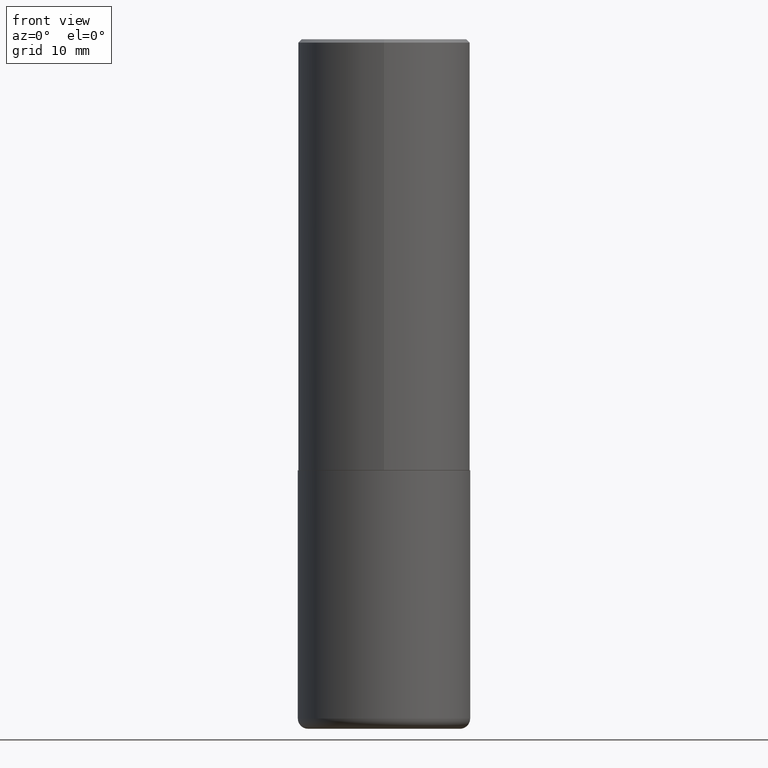
[diagram: clean part render]
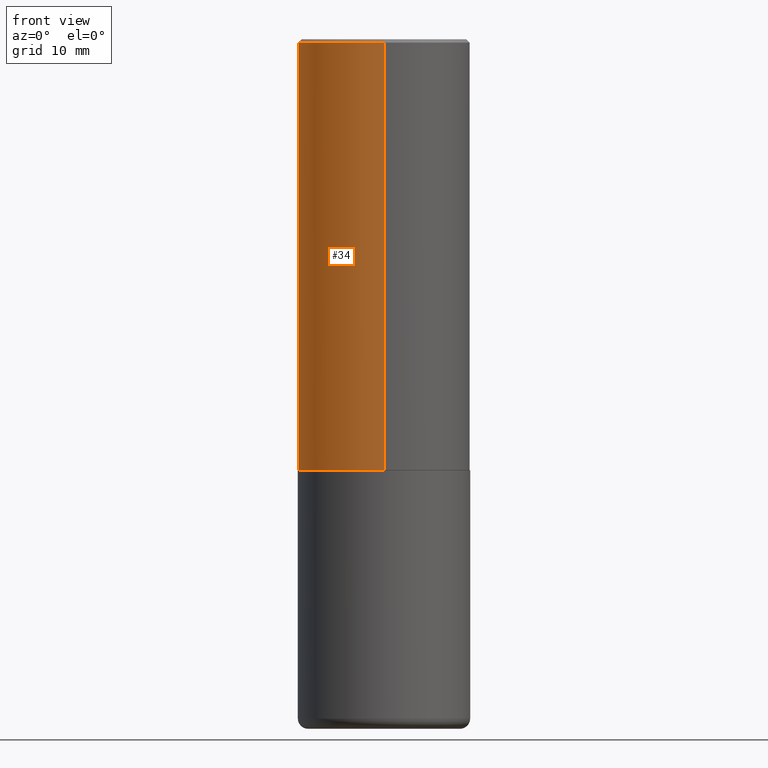
[diagram: same view with one face highlighted and labeled with its STEP entity id]
A machine part, front view. The second image highlights one B-rep face of the part: STEP entity #34.
In plain terms, the highlighted cylindrical surface (partial cylindrical patch) has radius 12.7 mm, axis along (-0, 0, 1).
Its self-contained STEP definition (entity closure, byte-faithful):
#5 = EDGE_CURVE ( 'NONE', #310, #291, #336, .T. ) ;
#6 = ORIENTED_EDGE ( 'NONE', *, *, #366, .F. ) ;
#9 = CARTESIAN_POINT ( 'NONE',  ( 3.491481338843133355E-15, 0.4999999999999999445, -0.02000000000000185310 ) ) ;
#12 = AXIS2_PLACEMENT_3D ( 'NONE', #135, #129, #272 ) ;
#21 = CARTESIAN_POINT ( 'NONE',  ( -3.491481338843073796E-15, -0.5000000000000089928, -2.498999999999998778 ) ) ;
#22 = EDGE_CURVE ( 'NONE', #310, #214, #365, .T. ) ;
#34 = ADVANCED_FACE ( 'NONE', ( #280 ), #97, .T. ) ;
#38 = LINE ( 'NONE', #299, #258 ) ;
#39 = CARTESIAN_POINT ( 'NONE',  ( 3.552713678800533273E-15, 0.4999999999999916178, -2.499000000000001886 ) ) ;
#44 = DIRECTION ( 'NONE',  ( -2.445784493455742698E-29, 3.491029256703833440E-15, 1.000000000000000000 ) ) ;
#52 = EDGE_CURVE ( 'NONE', #214, #201, #38, .T. ) ;
#68 = CARTESIAN_POINT ( 'NONE',  ( 3.552713678800501718E-15, 0.5000000000000001110, -1.745514628351917311E-15 ) ) ;
#97 = CYLINDRICAL_SURFACE ( 'NONE', #265, 0.5000000000000001110 ) ;
#107 = DIRECTION ( 'NONE',  ( -6.982962677686266711E-15, -1.000000000000000000, 3.278217592397114284E-15 ) ) ;
#129 = DIRECTION ( 'NONE',  ( -2.445784493455742698E-29, 3.491029256703833834E-15, 1.000000000000000000 ) ) ;
#135 = CARTESIAN_POINT ( 'NONE',  ( 4.891568986911511881E-31, -6.982058513407704202E-17, -0.02000000000000010797 ) ) ;
#154 = CARTESIAN_POINT ( 'NONE',  ( -3.430248998885764992E-15, -0.5000000000000001110, -0.01999999999999835937 ) ) ;
#159 = EDGE_LOOP ( 'NONE', ( #368, #241, #194, #6 ) ) ;
#173 = AXIS2_PLACEMENT_3D ( 'NONE', #279, #401, #107 ) ;
#194 = ORIENTED_EDGE ( 'NONE', *, *, #52, .T. ) ;
#201 = VERTEX_POINT ( 'NONE', #154 ) ;
#202 = DIRECTION ( 'NONE',  ( -2.445784493455742698E-29, 3.491029256703833834E-15, 1.000000000000000000 ) ) ;
#214 = VERTEX_POINT ( 'NONE', #21 ) ;
#241 = ORIENTED_EDGE ( 'NONE', *, *, #22, .T. ) ;
#258 = VECTOR ( 'NONE', #394, 39.37007874015748143 ) ;
#265 = AXIS2_PLACEMENT_3D ( 'NONE', #363, #202, #333 ) ;
#272 = DIRECTION ( 'NONE',  ( -6.982962677686265922E-15, -1.000000000000000000, 3.491643216902136408E-15 ) ) ;
#279 = CARTESIAN_POINT ( 'NONE',  ( 6.112015449145901369E-29, -8.724082112502882072E-15, -2.499000000000000110 ) ) ;
#280 = FACE_OUTER_BOUND ( 'NONE', #159, .T. ) ;
#291 = VERTEX_POINT ( 'NONE', #9 ) ;
#299 = CARTESIAN_POINT ( 'NONE',  ( -3.491481338843133750E-15, -0.5000000000000001110, 1.745514628351917311E-15 ) ) ;
#310 = VERTEX_POINT ( 'NONE', #39 ) ;
#333 = DIRECTION ( 'NONE',  ( -6.982962677686265922E-15, -1.000000000000000000, 3.491029256703833834E-15 ) ) ;
#336 = LINE ( 'NONE', #68, #374 ) ;
#363 = CARTESIAN_POINT ( 'NONE',  ( 0.000000000000000000, 0.000000000000000000, 0.000000000000000000 ) ) ;
#365 = CIRCLE ( 'NONE', #173, 0.5000000000000002220 ) ;
#366 = EDGE_CURVE ( 'NONE', #291, #201, #403, .T. ) ;
#368 = ORIENTED_EDGE ( 'NONE', *, *, #5, .F. ) ;
#374 = VECTOR ( 'NONE', #44, 39.37007874015748143 ) ;
#394 = DIRECTION ( 'NONE',  ( -2.445784493455742698E-29, 3.491029256703833440E-15, 1.000000000000000000 ) ) ;
#401 = DIRECTION ( 'NONE',  ( -2.445784493455742698E-29, 3.491029256703833834E-15, 1.000000000000000000 ) ) ;
#403 = CIRCLE ( 'NONE', #12, 0.5000000000000000000 ) ;